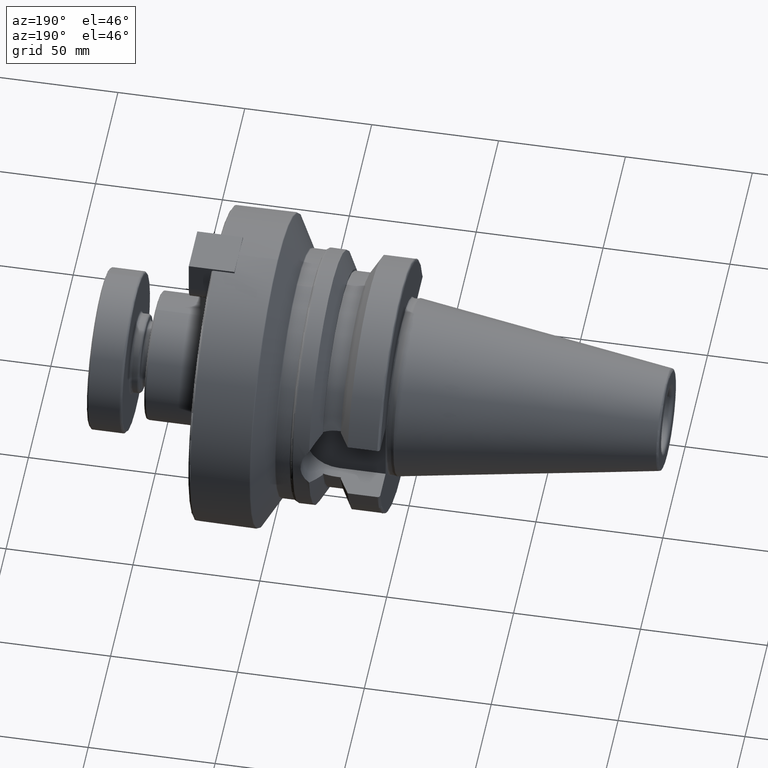
[diagram: clean part render]
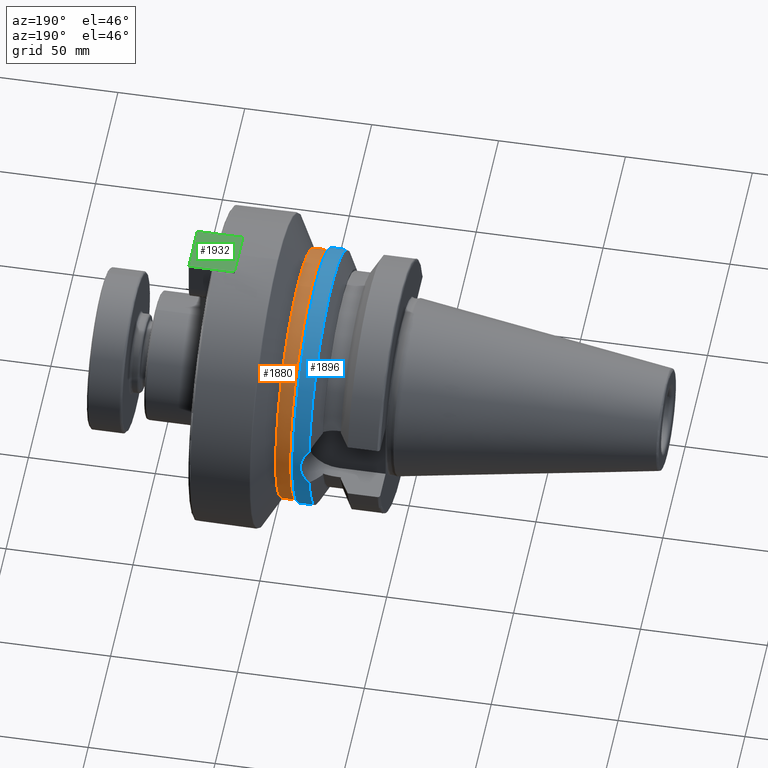
[diagram: same view with three faces highlighted in distinct colors, each labeled with its STEP entity id]
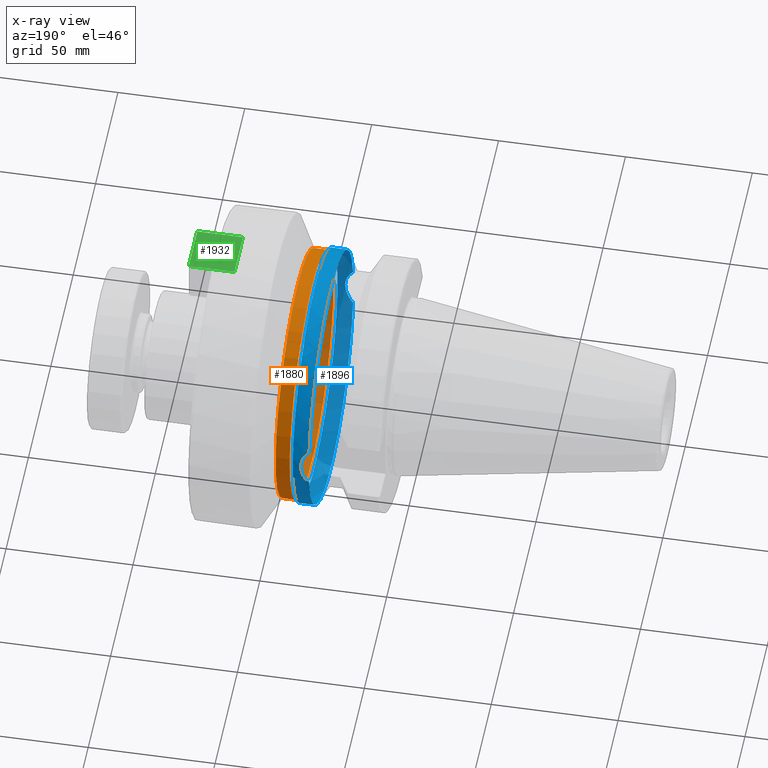
[diagram: x-ray of the same camera — body ghosted, the three highlighted faces saturated]
A machine part, auxiliary view with three faces highlighted in distinct colors.
The next image is the same camera in x-ray (body ghosted, the three faces saturated) — at least one of them is partly hidden behind the body in this view.
Their STEP definitions:

[orange] entity #1880 — the highlighted cylindrical surface (bore or boss wall) has radius 49 mm, axis along (1, 0, 0).
#104=CYLINDRICAL_SURFACE('',#2123,49.);
#149=CIRCLE('',#2121,49.);
#151=CIRCLE('',#2124,49.);
#288=FACE_OUTER_BOUND('',#409,.T.);
#409=EDGE_LOOP('',(#1344,#1345,#1346,#1347));
#543=LINE('',#3103,#668);
#668=VECTOR('',#2443,49.);
#821=VERTEX_POINT('',#3098);
#822=VERTEX_POINT('',#3102);
#1017=EDGE_CURVE('',#821,#821,#149,.T.);
#1019=EDGE_CURVE('',#821,#822,#543,.T.);
#1020=EDGE_CURVE('',#822,#822,#151,.T.);
#1344=ORIENTED_EDGE('',*,*,#1017,.F.);
#1345=ORIENTED_EDGE('',*,*,#1019,.T.);
#1346=ORIENTED_EDGE('',*,*,#1020,.F.);
#1347=ORIENTED_EDGE('',*,*,#1019,.F.);
#1880=ADVANCED_FACE('',(#288),#104,.T.);
#2121=AXIS2_PLACEMENT_3D('',#3099,#2437,#2438);
#2123=AXIS2_PLACEMENT_3D('',#3101,#2441,#2442);
#2124=AXIS2_PLACEMENT_3D('',#3104,#2444,#2445);
#2437=DIRECTION('center_axis',(1.,0.,0.));
#2438=DIRECTION('ref_axis',(0.,1.22464679914735E-16,1.));
#2441=DIRECTION('center_axis',(1.,0.,0.));
#2442=DIRECTION('ref_axis',(0.,0.,-1.));
#2443=DIRECTION('',(-1.,0.,0.));
#2444=DIRECTION('center_axis',(-1.,0.,0.));
#2445=DIRECTION('ref_axis',(0.,1.22464679914735E-16,1.));
#3098=CARTESIAN_POINT('',(43.9113248654052,-6.00076931582203E-15,49.));
#3099=CARTESIAN_POINT('Origin',(43.9113248654052,0.,0.));
#3101=CARTESIAN_POINT('Origin',(41.1,0.,0.));
#3102=CARTESIAN_POINT('',(38.4142135623731,-6.00076931582203E-15,49.));
#3103=CARTESIAN_POINT('',(41.1,-6.00076931582203E-15,49.));
#3104=CARTESIAN_POINT('Origin',(38.4142135623731,0.,0.));

[blue] entity #1896 — the highlighted cylindrical surface (bore or boss wall) has radius 50 mm, axis along (1, 0, 0).
#111=CYLINDRICAL_SURFACE('',#2155,50.);
#167=CIRCLE('',#2156,50.);
#168=CIRCLE('',#2157,50.);
#169=CIRCLE('',#2158,50.);
#170=CIRCLE('',#2159,50.);
#304=FACE_OUTER_BOUND('',#427,.T.);
#427=EDGE_LOOP('',(#1421,#1422,#1423,#1424,#1425,#1426,#1427,#1428,#1429));
#566=LINE('',#3258,#691);
#691=VECTOR('',#2532,50.);
#777=B_SPLINE_CURVE_WITH_KNOTS('',3,(#3168,#3169,#3170,#3171,#3172,#3173),
 .UNSPECIFIED.,.F.,.F.,(4,2,4),(1.94561135171899,2.43197607930495,2.84624067626888),
 .UNSPECIFIED.);
#778=B_SPLINE_CURVE_WITH_KNOTS('',3,(#3175,#3176,#3177,#3178,#3179,#3180),
 .UNSPECIFIED.,.F.,.F.,(4,2,4),(1.0449820271691,1.45924662413304,1.94561135171899),
 .UNSPECIFIED.);
#783=B_SPLINE_CURVE_WITH_KNOTS('',3,(#3262,#3263,#3264,#3265,#3266,#3267,
#3268,#3269,#3270,#3271),.UNSPECIFIED.,.F.,.F.,(4,2,2,2,4),(4.93620473060709,
5.35046932757102,5.83683405515698,6.32319878274293,6.73746337970686),
 .UNSPECIFIED.);
#838=VERTEX_POINT('',#3160);
#839=VERTEX_POINT('',#3167);
#840=VERTEX_POINT('',#3174);
#858=VERTEX_POINT('',#3255);
#859=VERTEX_POINT('',#3256);
#860=VERTEX_POINT('',#3259);
#861=VERTEX_POINT('',#3261);
#1045=EDGE_CURVE('',#839,#838,#777,.T.);
#1046=EDGE_CURVE('',#840,#839,#778,.T.);
#1068=EDGE_CURVE('',#858,#859,#167,.T.);
#1069=EDGE_CURVE('',#858,#839,#566,.T.);
#1070=EDGE_CURVE('',#838,#860,#168,.T.);
#1071=EDGE_CURVE('',#860,#861,#783,.T.);
#1072=EDGE_CURVE('',#861,#840,#169,.T.);
#1073=EDGE_CURVE('',#859,#858,#170,.T.);
#1421=ORIENTED_EDGE('',*,*,#1068,.F.);
#1422=ORIENTED_EDGE('',*,*,#1069,.T.);
#1423=ORIENTED_EDGE('',*,*,#1045,.T.);
#1424=ORIENTED_EDGE('',*,*,#1070,.T.);
#1425=ORIENTED_EDGE('',*,*,#1071,.T.);
#1426=ORIENTED_EDGE('',*,*,#1072,.T.);
#1427=ORIENTED_EDGE('',*,*,#1046,.T.);
#1428=ORIENTED_EDGE('',*,*,#1069,.F.);
#1429=ORIENTED_EDGE('',*,*,#1073,.F.);
#1896=ADVANCED_FACE('',(#304),#111,.T.);
#2155=AXIS2_PLACEMENT_3D('',#3254,#2528,#2529);
#2156=AXIS2_PLACEMENT_3D('',#3257,#2530,#2531);
#2157=AXIS2_PLACEMENT_3D('',#3260,#2533,#2534);
#2158=AXIS2_PLACEMENT_3D('',#3272,#2535,#2536);
#2159=AXIS2_PLACEMENT_3D('',#3273,#2537,#2538);
#2528=DIRECTION('center_axis',(1.,0.,0.));
#2529=DIRECTION('ref_axis',(0.,1.,0.));
#2530=DIRECTION('center_axis',(1.,0.,0.));
#2531=DIRECTION('ref_axis',(0.,0.,-1.));
#2532=DIRECTION('',(-1.,0.,0.));
#2533=DIRECTION('center_axis',(1.,0.,0.));
#2534=DIRECTION('ref_axis',(0.,0.,-1.));
#2535=DIRECTION('center_axis',(1.,0.,0.));
#2536=DIRECTION('ref_axis',(0.,0.,-1.));
#2537=DIRECTION('center_axis',(1.,0.,0.));
#2538=DIRECTION('ref_axis',(0.,0.,-1.));
#3160=CARTESIAN_POINT('',(30.732084412946,-49.2614843635149,-8.56190155883473));
#3167=CARTESIAN_POINT('',(34.,-50.,-3.06161699786838E-15));
#3168=CARTESIAN_POINT('Ctrl Pts',(34.,-50.,0.));
#3169=CARTESIAN_POINT('Ctrl Pts',(34.,-50.,-1.62121575861985));
#3170=CARTESIAN_POINT('Ctrl Pts',(33.6745155840303,-49.9132657111737,-3.34559903481264));
#3171=CARTESIAN_POINT('Ctrl Pts',(32.4582062331155,-49.6231582095288,-6.27499601477286));
#3172=CARTESIAN_POINT('Ctrl Pts',(31.6613105934157,-49.4422325446756,-7.52195457523598));
#3173=CARTESIAN_POINT('Ctrl Pts',(30.732084412946,-49.2614843635149,-8.56190155883473));
#3174=CARTESIAN_POINT('',(30.732084412946,-49.2614843635149,8.56190155883473));
#3175=CARTESIAN_POINT('Ctrl Pts',(30.732084412946,-49.2614843635149,8.56190155883473));
#3176=CARTESIAN_POINT('Ctrl Pts',(31.6613105934157,-49.4422325446756,7.52195457523598));
#3177=CARTESIAN_POINT('Ctrl Pts',(32.4582062331155,-49.6231582095288,6.27499601477286));
#3178=CARTESIAN_POINT('Ctrl Pts',(33.6745155840303,-49.9132657111737,3.34559903481264));
#3179=CARTESIAN_POINT('Ctrl Pts',(34.,-50.,1.62121575861985));
#3180=CARTESIAN_POINT('Ctrl Pts',(34.,-50.,2.77555756156289E-16));
#3254=CARTESIAN_POINT('Origin',(33.866042206473,0.,0.));
#3255=CARTESIAN_POINT('',(37.,-50.,-6.12323399573677E-15));
#3256=CARTESIAN_POINT('',(37.,-6.12323399573677E-15,50.));
#3257=CARTESIAN_POINT('Origin',(37.,0.,0.));
#3258=CARTESIAN_POINT('',(33.866042206473,-50.,-6.12323399573677E-15));
#3259=CARTESIAN_POINT('',(30.732084412946,49.2614843635149,-8.56190155883473));
#3260=CARTESIAN_POINT('Origin',(30.732084412946,0.,0.));
#3261=CARTESIAN_POINT('',(30.732084412946,49.2614843635149,8.56190155883473));
#3262=CARTESIAN_POINT('Ctrl Pts',(30.732084412946,49.2614843635149,-8.56190155883473));
#3263=CARTESIAN_POINT('Ctrl Pts',(31.6613105934157,49.4422325446756,-7.52195457523598));
#3264=CARTESIAN_POINT('Ctrl Pts',(32.4582062331155,49.6231582095288,-6.27499601477286));
#3265=CARTESIAN_POINT('Ctrl Pts',(33.6745155840303,49.9132657111737,-3.34559903481264));
#3266=CARTESIAN_POINT('Ctrl Pts',(34.,50.,-1.62121575861985));
#3267=CARTESIAN_POINT('Ctrl Pts',(34.,50.,1.62121575861984));
#3268=CARTESIAN_POINT('Ctrl Pts',(33.6745155840303,49.9132657111737,3.34559903481263));
#3269=CARTESIAN_POINT('Ctrl Pts',(32.4582062331155,49.6231582095288,6.27499601477285));
#3270=CARTESIAN_POINT('Ctrl Pts',(31.6613105934157,49.4422325446756,7.52195457523597));
#3271=CARTESIAN_POINT('Ctrl Pts',(30.732084412946,49.2614843635149,8.56190155883473));
#3272=CARTESIAN_POINT('Origin',(30.732084412946,0.,0.));
#3273=CARTESIAN_POINT('Origin',(37.,0.,0.));

[green] entity #1932 — the highlighted planar face has unit normal (0, 0, 1).
#340=FACE_OUTER_BOUND('',#467,.T.);
#467=EDGE_LOOP('',(#1594,#1595,#1596,#1597));
#593=LINE('',#3465,#718);
#594=LINE('',#3468,#719);
#595=LINE('',#3470,#720);
#596=LINE('',#3471,#721);
#718=VECTOR('',#2711,10.);
#719=VECTOR('',#2714,10.);
#720=VECTOR('',#2715,10.);
#721=VECTOR('',#2716,10.);
#900=VERTEX_POINT('',#3458);
#903=VERTEX_POINT('',#3463);
#904=VERTEX_POINT('',#3467);
#905=VERTEX_POINT('',#3469);
#1145=EDGE_CURVE('',#900,#903,#593,.T.);
#1146=EDGE_CURVE('',#904,#900,#594,.T.);
#1147=EDGE_CURVE('',#905,#903,#595,.T.);
#1148=EDGE_CURVE('',#904,#905,#596,.T.);
#1594=ORIENTED_EDGE('',*,*,#1146,.T.);
#1595=ORIENTED_EDGE('',*,*,#1145,.T.);
#1596=ORIENTED_EDGE('',*,*,#1147,.F.);
#1597=ORIENTED_EDGE('',*,*,#1148,.F.);
#1832=PLANE('',#2233);
#1932=ADVANCED_FACE('',(#340),#1832,.T.);
#2233=AXIS2_PLACEMENT_3D('',#3466,#2712,#2713);
#2711=DIRECTION('',(0.,1.,0.));
#2712=DIRECTION('center_axis',(0.,0.,-1.));
#2713=DIRECTION('ref_axis',(-1.,0.,0.));
#2714=DIRECTION('',(-1.,0.,0.));
#2715=DIRECTION('',(-1.,0.,0.));
#2716=DIRECTION('',(0.,1.,0.));
#3458=CARTESIAN_POINT('',(-9.525,0.,-12.475));
#3463=CARTESIAN_POINT('',(-9.525,18.,-12.475));
#3465=CARTESIAN_POINT('',(-9.525,0.,-12.475));
#3466=CARTESIAN_POINT('Origin',(9.525,0.,-12.475));
#3467=CARTESIAN_POINT('',(9.525,0.,-12.475));
#3468=CARTESIAN_POINT('',(9.525,0.,-12.475));
#3469=CARTESIAN_POINT('',(9.525,18.,-12.475));
#3470=CARTESIAN_POINT('',(9.525,18.,-12.475));
#3471=CARTESIAN_POINT('',(9.525,0.,-12.475));